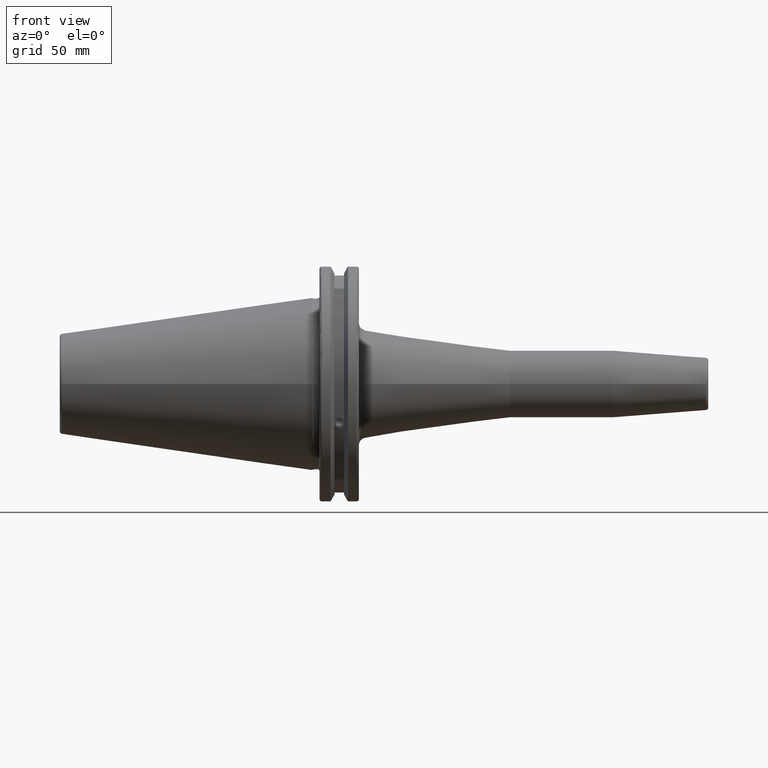
[diagram: clean part render]
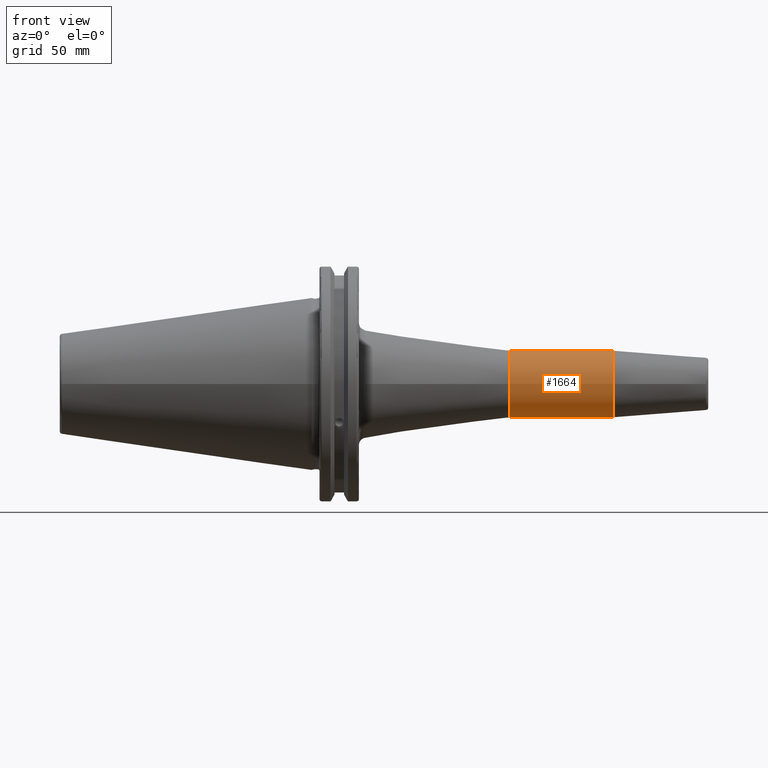
[diagram: same view with one face highlighted and labeled with its STEP entity id]
A machine part, front view. The second image highlights one B-rep face of the part: STEP entity #1664.
In plain terms, the highlighted cylindrical surface (bore or boss wall) has radius 13.5 mm, axis along (1, 0, 0).
Its self-contained STEP definition (entity closure, byte-faithful):
#75=CYLINDRICAL_SURFACE('',#1806,13.5);
#116=LINE('',#2568,#211);
#211=VECTOR('',#2076,13.5);
#375=FACE_OUTER_BOUND('',#468,.T.);
#468=EDGE_LOOP('',(#1200,#1201,#1202,#1203,#1204,#1205));
#566=CIRCLE('',#1769,13.5);
#567=CIRCLE('',#1770,13.5);
#578=CIRCLE('',#1785,13.5);
#579=CIRCLE('',#1786,13.5);
#676=VERTEX_POINT('',#2479);
#677=VERTEX_POINT('',#2481);
#686=VERTEX_POINT('',#2507);
#687=VERTEX_POINT('',#2508);
#863=EDGE_CURVE('',#676,#677,#566,.T.);
#864=EDGE_CURVE('',#677,#676,#567,.T.);
#876=EDGE_CURVE('',#686,#687,#578,.T.);
#877=EDGE_CURVE('',#687,#686,#579,.T.);
#905=EDGE_CURVE('',#676,#687,#116,.T.);
#1200=ORIENTED_EDGE('',*,*,#864,.F.);
#1201=ORIENTED_EDGE('',*,*,#863,.F.);
#1202=ORIENTED_EDGE('',*,*,#905,.T.);
#1203=ORIENTED_EDGE('',*,*,#877,.T.);
#1204=ORIENTED_EDGE('',*,*,#876,.T.);
#1205=ORIENTED_EDGE('',*,*,#905,.F.);
#1664=ADVANCED_FACE('',(#375),#75,.T.);
#1769=AXIS2_PLACEMENT_3D('',#2482,#1984,#1985);
#1770=AXIS2_PLACEMENT_3D('',#2483,#1986,#1987);
#1785=AXIS2_PLACEMENT_3D('',#2509,#2017,#2018);
#1786=AXIS2_PLACEMENT_3D('',#2510,#2019,#2020);
#1806=AXIS2_PLACEMENT_3D('',#2567,#2074,#2075);
#1984=DIRECTION('center_axis',(1.,0.,0.));
#1985=DIRECTION('ref_axis',(0.,0.,-1.));
#1986=DIRECTION('center_axis',(1.,0.,0.));
#1987=DIRECTION('ref_axis',(0.,0.,-1.));
#2017=DIRECTION('center_axis',(1.,0.,0.));
#2018=DIRECTION('ref_axis',(0.,0.,-1.));
#2019=DIRECTION('center_axis',(1.,0.,0.));
#2020=DIRECTION('ref_axis',(0.,0.,-1.));
#2074=DIRECTION('center_axis',(1.,0.,0.));
#2075=DIRECTION('ref_axis',(0.,1.,0.));
#2076=DIRECTION('',(-1.,0.,0.));
#2479=CARTESIAN_POINT('',(121.881385791476,-13.5,-1.65327317884893E-15));
#2481=CARTESIAN_POINT('',(121.881385791476,13.5,0.));
#2482=CARTESIAN_POINT('Origin',(121.881385791476,0.,0.));
#2483=CARTESIAN_POINT('Origin',(121.881385791476,0.,0.));
#2507=CARTESIAN_POINT('',(80.,13.5,0.));
#2508=CARTESIAN_POINT('',(80.,-13.5,-1.65327317884893E-15));
#2509=CARTESIAN_POINT('Origin',(80.,0.,0.));
#2510=CARTESIAN_POINT('Origin',(80.,0.,0.));
#2567=CARTESIAN_POINT('Origin',(100.940692895738,0.,0.));
#2568=CARTESIAN_POINT('',(100.940692895738,-13.5,-1.65327317884893E-15));